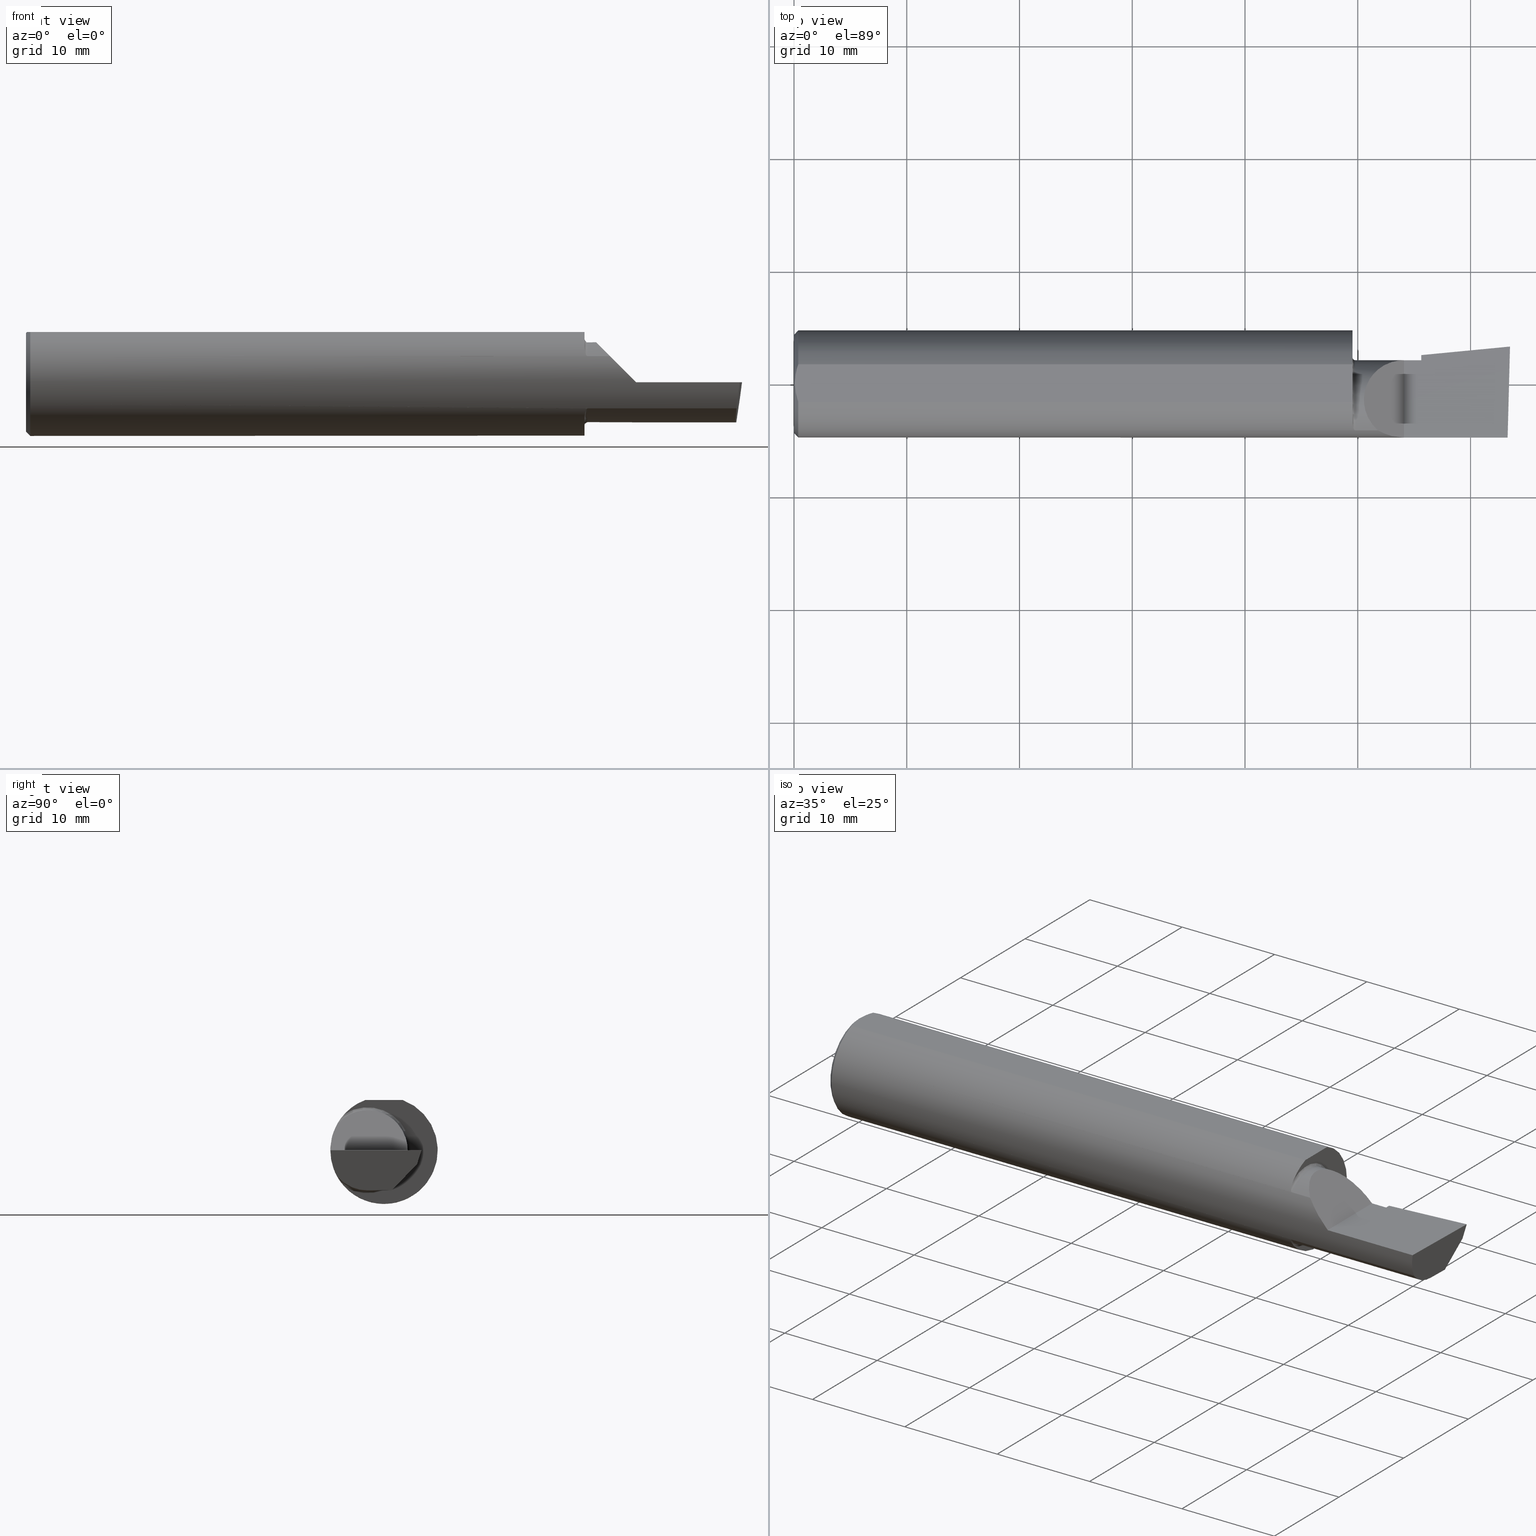
[diagram: canonical four-view strip — front | top / right | iso, engineering-drawing reading convention]
A machine part, canonical four-view strip (front | top / right | iso — engineering-drawing reading convention). The complete STEP part file that produces these views, byte-faithful:
ISO-10303-21;
HEADER;
FILE_DESCRIPTION (( 'STEP AP203' ),
    '1' );
FILE_NAME ('217507-B320500.STEP',
    '2024-04-26T19:29:27',
    ( '' ),
    ( '' ),
    'SwSTEP 2.0',
    'SolidWorks 2022',
    '' );
FILE_SCHEMA (( 'CONFIG_CONTROL_DESIGN' ));
ENDSEC;

DATA;
#1 = CARTESIAN_POINT ( 'NONE',  ( 1.949999999999999956, 0.09265000000000002400, 0.000000000000000000 ) ) ;
#2 = DIRECTION ( 'NONE',  ( -1.000000000000000000, -0.000000000000000000, -0.000000000000000000 ) ) ;
#3 = EDGE_CURVE ( 'NONE', #378, #622, #158, .T. ) ;
#4 = CARTESIAN_POINT ( 'NONE',  ( 1.949999999999999956, -0.1434410963562314512, 0.1207567927018309145 ) ) ;
#5 = FACE_OUTER_BOUND ( 'NONE', #262, .T. ) ;
#6 = AXIS2_PLACEMENT_3D ( 'NONE', #295, #445, #298 ) ;
#7 = DIRECTION ( 'NONE',  ( 0.000000000000000000, 0.000000000000000000, -1.000000000000000000 ) ) ;
#8 = CARTESIAN_POINT ( 'NONE',  ( 0.000000000000000000, -0.06597272163553657975, 0.1753499999999999781 ) ) ;
#9 = DIRECTION ( 'NONE',  ( 1.000000000000000000, 0.000000000000000000, 0.000000000000000000 ) ) ;
#10 = PLANE ( 'NONE',  #56 ) ;
#11 = CIRCLE ( 'NONE', #367, 0.1400500000000000356 ) ;
#12 = LINE ( 'NONE', #218, #620 ) ;
#13 = ADVANCED_FACE ( 'NONE', ( #200 ), #431, .T. ) ;
#14 = LINE ( 'NONE', #219, #458 ) ;
#15 = CC_DESIGN_APPROVAL ( #552, ( #209 ) ) ;
#16 = EDGE_CURVE ( 'NONE', #504, #329, #199, .T. ) ;
#17 = DIRECTION ( 'NONE',  ( 0.000000000000000000, 1.000000000000000000, 0.000000000000000000 ) ) ;
#18 = PLANE ( 'NONE',  #224 ) ;
#19 = ORIENTED_EDGE ( 'NONE', *, *, #569, .T. ) ;
#20 = CALENDAR_DATE ( 2024, 26, 4 ) ;
#21 = CARTESIAN_POINT ( 'NONE',  ( 0.000000000000000000, 0.000000000000000000, 0.000000000000000000 ) ) ;
#22 = DIRECTION ( 'NONE',  ( -0.02617694830779365364, -0.9996573249755593693, -8.535148296544462419E-17 ) ) ;
#23 = ORIENTED_EDGE ( 'NONE', *, *, #588, .T. ) ;
#24 = CARTESIAN_POINT ( 'NONE',  ( 2.493766568580444432, 0.1168246249203733628, -0.04780233936830585728 ) ) ;
#25 = CARTESIAN_POINT ( 'NONE',  ( 1.956503643436637629, -0.1620795007490425099, -0.09397341491037392025 ) ) ;
#26 = EDGE_LOOP ( 'NONE', ( #239, #515, #234 ) ) ;
#27 = DIRECTION ( 'NONE',  ( 0.1053106618240634978, 0.6976485211320199165, 0.7086580314005359593 ) ) ;
#28 = VECTOR ( 'NONE', #196, 39.37007874015748143 ) ;
#29 = CARTESIAN_POINT ( 'NONE',  ( 1.949999999999999956, -0.06597272163553659363, 0.1753499999999999781 ) ) ;
#30 = ORIENTED_EDGE ( 'NONE', *, *, #500, .T. ) ;
#31 = DATE_AND_TIME ( #20, #543 ) ;
#32 = ORIENTED_EDGE ( 'NONE', *, *, #327, .F. ) ;
#33 = VERTEX_POINT ( 'NONE', #296 ) ;
#34 = ADVANCED_FACE ( 'NONE', ( #50 ), #528, .F. ) ;
#35 = PERSON_AND_ORGANIZATION_ROLE ( 'creator' ) ;
#36 = AXIS2_PLACEMENT_3D ( 'NONE', #21, #488, #387 ) ;
#37 = VERTEX_POINT ( 'NONE', #203 ) ;
#38 = EDGE_CURVE ( 'NONE', #329, #142, #341, .T. ) ;
#39 = CARTESIAN_POINT ( 'NONE',  ( 0.004115035183746292881, 0.02255629470626744487, 0.1753499999999999781 ) ) ;
#40 = ORIENTED_EDGE ( 'NONE', *, *, #465, .T. ) ;
#41 = EDGE_CURVE ( 'NONE', #378, #152, #538, .T. ) ;
#42 = CARTESIAN_POINT ( 'NONE',  ( 0.5470260790800310913, -0.05740000000000000657, 2.701812985571357332E-16 ) ) ;
#43 = ORIENTED_EDGE ( 'NONE', *, *, #306, .F. ) ;
#44 = CIRCLE ( 'NONE', #269, 0.1873499999999999888 ) ;
#45 = CARTESIAN_POINT ( 'NONE',  ( 0.000000000000000000, 2.202527268266512578E-17, 0.1723499999999996424 ) ) ;
#46 = VERTEX_POINT ( 'NONE', #343 ) ;
#47 =( BOUNDED_CURVE ( )  B_SPLINE_CURVE ( 3, ( #54, #57, #301, #250 ),
 .UNSPECIFIED., .F., .T. ) 
 B_SPLINE_CURVE_WITH_KNOTS ( ( 4, 4 ),
 ( 5.632580117768155148, 6.493234751459282528 ),
 .UNSPECIFIED. ) 
 CURVE ( )  GEOMETRIC_REPRESENTATION_ITEM ( )  RATIONAL_B_SPLINE_CURVE ( ( 1.000000000000000000, 0.9392195014330944058, 0.9392195014330944058, 1.000000000000000000 ) ) 
 REPRESENTATION_ITEM ( '' )  );
#48 = ADVANCED_FACE ( 'NONE', ( #251 ), #572, .T. ) ;
#49 = DIRECTION ( 'NONE',  ( -1.000000000000000000, 0.000000000000000000, 1.033731667140896077E-16 ) ) ;
#50 = FACE_OUTER_BOUND ( 'NONE', #497, .T. ) ;
#51 = CARTESIAN_POINT ( 'NONE',  ( 2.491672876940991710, -0.1873499999999999888, 6.915950918908297591E-17 ) ) ;
#52 = FACE_OUTER_BOUND ( 'NONE', #122, .T. ) ;
#53 = ORIENTED_EDGE ( 'NONE', *, *, #306, .T. ) ;
#54 = CARTESIAN_POINT ( 'NONE',  ( 2.481080296960508580, -0.1635956445993030084, -0.09130436773856176469 ) ) ;
#55 = CARTESIAN_POINT ( 'NONE',  ( 2.189999999999999947, 0.1008003950587628567, 0.000000000000000000 ) ) ;
#56 = AXIS2_PLACEMENT_3D ( 'NONE', #154, #210, #241 ) ;
#57 = CARTESIAN_POINT ( 'NONE',  ( 2.477925907309857401, -0.1365595166907235813, -0.1227499502647108609 ) ) ;
#58 = DIRECTION ( 'NONE',  ( 6.829619984160658046E-18, -1.000000000000000000, 0.000000000000000000 ) ) ;
#59 = DIRECTION ( 'NONE',  ( 4.755568962650852797E-18, -0.6963153109074924352, -0.7177360153954948085 ) ) ;
#60 = EDGE_CURVE ( 'NONE', #152, #70, #291, .T. ) ;
#61 = CARTESIAN_POINT ( 'NONE',  ( 1.950000000000000178, -0.1434457138613161042, -0.1207517378170856193 ) ) ;
#62 = AXIS2_PLACEMENT_3D ( 'NONE', #470, #425, #49 ) ;
#63 = AXIS2_PLACEMENT_3D ( 'NONE', #349, #436, #110 ) ;
#64 = DIRECTION ( 'NONE',  ( 1.000000000000000000, 6.829619984160658046E-18, 0.000000000000000000 ) ) ;
#65 = CARTESIAN_POINT ( 'NONE',  ( 1.958216394543444761, -0.1632528125625386517, 0.09191892236924094350 ) ) ;
#66 = LOCAL_TIME ( 12, 29, 27.00000000000000000, #233 ) ;
#67 = EDGE_LOOP ( 'NONE', ( #92, #509, #252, #371 ) ) ;
#68 = FACE_OUTER_BOUND ( 'NONE', #317, .T. ) ;
#69 = CARTESIAN_POINT ( 'NONE',  ( 2.477889026591898247, -0.05682100378451882677, -0.1400500000000000633 ) ) ;
#70 = VERTEX_POINT ( 'NONE', #102 ) ;
#71 = CARTESIAN_POINT ( 'NONE',  ( 0.003000000000000218638, 2.334609556160449697E-17, 0.1753499999999999781 ) ) ;
#72 = CARTESIAN_POINT ( 'NONE',  ( 1.958200855161537968, -0.1632467142437131757, -0.09192985110639270707 ) ) ;
#73 = VERTEX_POINT ( 'NONE', #388 ) ;
#74 = CARTESIAN_POINT ( 'NONE',  ( 1.949999999999999956, 0.06597272163553663527, 0.1753499999999999781 ) ) ;
#75 = DIMENSIONAL_EXPONENTS ( 1.000000000000000000, 0.000000000000000000, 0.000000000000000000, 0.000000000000000000, 0.000000000000000000, 0.000000000000000000, 0.000000000000000000 ) ;
#76 = CARTESIAN_POINT ( 'NONE',  ( 1.959999999999999964, -0.1635956445993023423, -0.09130436773856262511 ) ) ;
#77 = CIRCLE ( 'NONE', #36, 0.1723499999999996424 ) ;
#78 = ORIENTED_EDGE ( 'NONE', *, *, #426, .T. ) ;
#79 = VERTEX_POINT ( 'NONE', #300 ) ;
#80 = ORIENTED_EDGE ( 'NONE', *, *, #195, .T. ) ;
#81 = APPROVAL_DATE_TIME ( #510, #552 ) ;
#82 = EDGE_LOOP ( 'NONE', ( #362, #237, #171, #314, #98 ) ) ;
#83 = CC_DESIGN_APPROVAL ( #168, ( #118 ) ) ;
#84 = CARTESIAN_POINT ( 'NONE',  ( 2.129999999999999893, -0.1873499999999999888, 1.065442715258197396E-16 ) ) ;
#85 = ORIENTED_EDGE ( 'NONE', *, *, #600, .T. ) ;
#86 = DIRECTION ( 'NONE',  ( 0.000000000000000000, 1.000000000000000000, 0.000000000000000000 ) ) ;
#87 = B_SPLINE_CURVE_WITH_KNOTS ( 'NONE', 3,
 ( #76, #174, #72, #129, #25, #308, #496, #324, #394, #162, #61, #551 ),
 .UNSPECIFIED., .F., .F.,
 ( 4, 2, 2, 2, 2, 4 ),
 ( 1.968964099585697094E-07, 7.414172666648438453E-05, 0.0001480865569230101957, 0.0002959762174360514638, 0.0005917555384621339459, 0.001183314180514301404 ),
 .UNSPECIFIED. ) ;
#88 = ORIENTED_EDGE ( 'NONE', *, *, #178, .F. ) ;
#89 = CC_DESIGN_PERSON_AND_ORGANIZATION_ASSIGNMENT ( #464, #35, ( #209 ) ) ;
#90 = CARTESIAN_POINT ( 'NONE',  ( 1.959999999999999964, -0.05739999999999999963, 0.000000000000000000 ) ) ;
#91 = VECTOR ( 'NONE', #524, 39.37007874015748143 ) ;
#92 = ORIENTED_EDGE ( 'NONE', *, *, #146, .T. ) ;
#93 = ADVANCED_FACE ( 'NONE', ( #582 ), #299, .T. ) ;
#94 = MANIFOLD_SOLID_BREP ( 'Extrude7', #115 ) ;
#95 = CIRCLE ( 'NONE', #494, 0.1400500000000000356 ) ;
#96 = CARTESIAN_POINT ( 'NONE',  ( 2.477873865042410806, -0.05739999999999999963, -0.1400500000000000633 ) ) ;
#97 = CARTESIAN_POINT ( 'NONE',  ( 2.493439983562941720, 0.1146611065212078395, -0.04999999999999999584 ) ) ;
#98 = ORIENTED_EDGE ( 'NONE', *, *, #544, .F. ) ;
#99 = CARTESIAN_POINT ( 'NONE',  ( 2.491672876940991710, -0.1873499999999999888, 6.915950918908297591E-17 ) ) ;
#100 = CARTESIAN_POINT ( 'NONE',  ( 2.189999999999999947, -0.05739999999999999963, -0.1400500000000000633 ) ) ;
#101 = CARTESIAN_POINT ( 'NONE',  ( 2.189999999999999947, 0.06026672169836861520, -0.07595093880103576112 ) ) ;
#102 = CARTESIAN_POINT ( 'NONE',  ( 0.01499999999999999424, 0.000000000000000000, -0.1873499999999999888 ) ) ;
#103 = ADVANCED_FACE ( 'NONE', ( #52 ), #10, .F. ) ;
#104 = PERSON_AND_ORGANIZATION ( #278, #338 ) ;
#105 = LINE ( 'NONE', #208, #575 ) ;
#106 = EDGE_CURVE ( 'NONE', #493, #460, #346, .T. ) ;
#107 = DIRECTION ( 'NONE',  ( -0.9953961983671800740, -0.09584575252021028391, -1.093478026937437971E-17 ) ) ;
#108 = VECTOR ( 'NONE', #107, 39.37007874015748854 ) ;
#109 = DIRECTION ( 'NONE',  ( -0.7071067811865439090, 0.000000000000000000, -0.7071067811865512365 ) ) ;
#110 = DIRECTION ( 'NONE',  ( 0.000000000000000000, -1.000000000000000000, 0.000000000000000000 ) ) ;
#111 = CARTESIAN_POINT ( 'NONE',  ( 2.189999999999999947, 0.06670933817657881404, -0.06931012851386068874 ) ) ;
#112 = CARTESIAN_POINT ( 'NONE',  ( 1.959999999999999964, -0.1635956445993023423, -0.09130436773856262511 ) ) ;
#113 = EDGE_CURVE ( 'NONE', #37, #142, #530, .T. ) ;
#114 = ORIENTED_EDGE ( 'NONE', *, *, #330, .T. ) ;
#115 = CLOSED_SHELL ( 'NONE', ( #48, #276, #525, #303, #521, #161, #351, #446, #437, #93, #197, #13, #267, #173, #215, #34, #103 ) ) ;
#116 = CARTESIAN_POINT ( 'NONE',  ( 1.949999999999999956, 0.2373500000000000332, 0.1753499999999999504 ) ) ;
#117 = DIRECTION ( 'NONE',  ( -0.06894566448119619773, 0.7160281025913034503, -0.6946583704589934793 ) ) ;
#118 = PRODUCT_DEFINITION_FORMATION_WITH_SPECIFIED_SOURCE ( 'ANY', '', #579, .NOT_KNOWN. ) ;
#119 = ORIENTED_EDGE ( 'NONE', *, *, #60, .T. ) ;
#120 = DATE_AND_TIME ( #359, #66 ) ;
#121 = CARTESIAN_POINT ( 'NONE',  ( 1.957002686248069612, -0.1625222757049321343, 0.09320450095779687916 ) ) ;
#122 = EDGE_LOOP ( 'NONE', ( #334, #272, #373, #19, #542, #455 ) ) ;
#123 = PRODUCT_RELATED_PRODUCT_CATEGORY ( 'detail', '', ( #579 ) ) ;
#124 = APPLICATION_PROTOCOL_DEFINITION ( 'international standard', 'config_control_design', 1994, #205 ) ;
#125 = DIRECTION ( 'NONE',  ( 1.000000000000000000, 6.829619984160658046E-18, 0.000000000000000000 ) ) ;
#126 = ORIENTED_EDGE ( 'NONE', *, *, #490, .F. ) ;
#127 = LINE ( 'NONE', #24, #182 ) ;
#128 = AXIS2_PLACEMENT_3D ( 'NONE', #587, #9, #247 ) ;
#129 = CARTESIAN_POINT ( 'NONE',  ( 1.956977885846546306, -0.1625039841807080776, -0.09323648621225624766 ) ) ;
#130 = CIRCLE ( 'NONE', #370, 0.1873499999999999888 ) ;
#131 = EDGE_LOOP ( 'NONE', ( #275, #85, #562, #512 ) ) ;
#132 = DIRECTION ( 'NONE',  ( 0.000000000000000000, 0.000000000000000000, 1.000000000000000000 ) ) ;
#133 = EDGE_CURVE ( 'NONE', #79, #493, #145, .T. ) ;
#134 = ORIENTED_EDGE ( 'NONE', *, *, #390, .T. ) ;
#135 = APPROVAL_ROLE ( '' ) ;
#136 =( NAMED_UNIT ( * ) PLANE_ANGLE_UNIT ( ) SI_UNIT ( $, .RADIAN. ) );
#137 = ORIENTED_EDGE ( 'NONE', *, *, #483, .F. ) ;
#138 = DIRECTION ( 'NONE',  ( 0.02617694830779364323, 0.9996573249755593693, -2.665804247635780349E-18 ) ) ;
#139 = AXIS2_PLACEMENT_3D ( 'NONE', #571, #293, #480 ) ;
#140 = VERTEX_POINT ( 'NONE', #97 ) ;
#141 = CARTESIAN_POINT ( 'NONE',  ( 2.490039159128059953, -0.2497391662021650194, 6.932588350567417155E-17 ) ) ;
#142 = VERTEX_POINT ( 'NONE', #476 ) ;
#143 = DIRECTION ( 'NONE',  ( 1.000000000000000000, 0.000000000000000000, 0.000000000000000000 ) ) ;
#144 = VECTOR ( 'NONE', #484, 39.37007874015748143 ) ;
#145 = LINE ( 'NONE', #337, #192 ) ;
#146 = EDGE_CURVE ( 'NONE', #220, #507, #567, .T. ) ;
#147 = DATE_AND_TIME ( #573, #360 ) ;
#148 = AXIS2_PLACEMENT_3D ( 'NONE', #304, #583, #435 ) ;
#149 = PLANE ( 'NONE',  #606 ) ;
#150 = CARTESIAN_POINT ( 'NONE',  ( 1.953030094855348286, -0.1569359418858940758, 0.1023945457153810634 ) ) ;
#151 = LINE ( 'NONE', #238, #553 ) ;
#152 = VERTEX_POINT ( 'NONE', #357 ) ;
#153 = PLANE ( 'NONE',  #128 ) ;
#154 = CARTESIAN_POINT ( 'NONE',  ( 2.475850273311264615, -0.1244607267090816621, -0.1422282308645907711 ) ) ;
#155 = PERSON_AND_ORGANIZATION ( #278, #338 ) ;
#156 = DIRECTION ( 'NONE',  ( -1.000000000000000000, -6.829619984160658046E-18, -0.000000000000000000 ) ) ;
#157 = VECTOR ( 'NONE', #366, 39.37007874015748854 ) ;
#158 = LINE ( 'NONE', #381, #462 ) ;
#159 = VECTOR ( 'NONE', #22, 39.37007874015748143 ) ;
#160 = PLANE ( 'NONE',  #356 ) ;
#161 = ADVANCED_FACE ( 'NONE', ( #316 ), #499, .F. ) ;
#162 = CARTESIAN_POINT ( 'NONE',  ( 1.950535130224571922, -0.1482744458446704217, -0.1147666934430604108 ) ) ;
#163 = ORIENTED_EDGE ( 'NONE', *, *, #3, .F. ) ;
#164 = FACE_OUTER_BOUND ( 'NONE', #473, .T. ) ;
#165 = DIRECTION ( 'NONE',  ( 6.829619984160658046E-18, -1.000000000000000000, 0.000000000000000000 ) ) ;
#166 = ORIENTED_EDGE ( 'NONE', *, *, #619, .F. ) ;
#167 = DIRECTION ( 'NONE',  ( 1.000000000000000000, 0.000000000000000000, 0.000000000000000000 ) ) ;
#168 = APPROVAL ( #190, 'UNSPECIFIED' ) ;
#169 = FACE_OUTER_BOUND ( 'NONE', #516, .T. ) ;
#170 = APPROVAL_PERSON_ORGANIZATION ( #184, #428, #135 ) ;
#171 = ORIENTED_EDGE ( 'NONE', *, *, #390, .F. ) ;
#172 = MECHANICAL_CONTEXT ( 'NONE', #618, 'mechanical' ) ;
#173 = ADVANCED_FACE ( 'NONE', ( #454 ), #443, .T. ) ;
#174 = CARTESIAN_POINT ( 'NONE',  ( 1.959014641741960938, -0.1635956445993026198, -0.09130436773856262511 ) ) ;
#175 = VERTEX_POINT ( 'NONE', #265 ) ;
#176 = DIRECTION ( 'NONE',  ( -1.000000000000000000, 5.691349986800549142E-18, -0.000000000000000000 ) ) ;
#177 = EDGE_CURVE ( 'NONE', #73, #448, #14, .T. ) ;
#178 = EDGE_CURVE ( 'NONE', #193, #287, #87, .T. ) ;
#179 = CARTESIAN_POINT ( 'NONE',  ( 0.000000000000000000, -0.05740000000000001351, 0.000000000000000000 ) ) ;
#180 = VERTEX_POINT ( 'NONE', #450 ) ;
#181 = VECTOR ( 'NONE', #616, 39.37007874015748143 ) ;
#182 = VECTOR ( 'NONE', #27, 39.37007874015748854 ) ;
#183 = ORIENTED_EDGE ( 'NONE', *, *, #539, .F. ) ;
#184 = PERSON_AND_ORGANIZATION ( #278, #338 ) ;
#185 = COORDINATED_UNIVERSAL_TIME_OFFSET ( 8, 0, .BEHIND. ) ;
#186 = ORIENTED_EDGE ( 'NONE', *, *, #177, .F. ) ;
#187 = ORIENTED_EDGE ( 'NONE', *, *, #325, .T. ) ;
#188 = DIRECTION ( 'NONE',  ( 6.829619984160658046E-18, -1.000000000000000000, 0.000000000000000000 ) ) ;
#189 = EDGE_LOOP ( 'NONE', ( #518, #114, #217, #331, #557, #43 ) ) ;
#190 = APPROVAL_STATUS ( 'not_yet_approved' ) ;
#191 = DIRECTION ( 'NONE',  ( -1.000000000000000000, -6.829619984160658046E-18, 0.000000000000000000 ) ) ;
#192 = VECTOR ( 'NONE', #522, 39.37007874015748143 ) ;
#193 = VERTEX_POINT ( 'NONE', #112 ) ;
#194 = CARTESIAN_POINT ( 'NONE',  ( 2.189999999999999947, -0.05739999999999999963, -0.1400500000000000633 ) ) ;
#195 = EDGE_CURVE ( 'NONE', #507, #422, #548, .T. ) ;
#196 = DIRECTION ( 'NONE',  ( -6.829619984160658816E-18, 1.000000000000000000, 7.059994452165177242E-34 ) ) ;
#197 = ADVANCED_FACE ( 'NONE', ( #593 ), #532, .F. ) ;
#198 = CARTESIAN_POINT ( 'NONE',  ( 0.003000000000000218638, 2.334609556160449697E-17, 0.1753499999999999781 ) ) ;
#199 = CIRCLE ( 'NONE', #63, 0.1400500000000000356 ) ;
#200 = FACE_OUTER_BOUND ( 'NONE', #407, .T. ) ;
#201 = SECURITY_CLASSIFICATION ( '', '', #395 ) ;
#202 = CARTESIAN_POINT ( 'NONE',  ( 2.066758987970638284, -0.1792580844883770730, 0.06324101202936138755 ) ) ;
#203 = CARTESIAN_POINT ( 'NONE',  ( 2.480058035321255794, 0.02601009779168069955, -0.1400500000000000633 ) ) ;
#204 = EDGE_CURVE ( 'NONE', #220, #287, #404, .T. ) ;
#205 = APPLICATION_CONTEXT ( 'configuration controlled 3d designs of mechanical parts and assemblies' ) ;
#206 = LINE ( 'NONE', #254, #281 ) ;
#207 = DIRECTION ( 'NONE',  ( -1.000000000000000000, -0.000000000000000000, -0.000000000000000000 ) ) ;
#208 = CARTESIAN_POINT ( 'NONE',  ( 2.075000000000000178, -0.1635956445993030084, -0.09130436773856176469 ) ) ;
#209 = PRODUCT_DEFINITION ( 'UNKNOWN', '', #118, #513 ) ;
#210 = DIRECTION ( 'NONE',  ( -0.9922060308645608284, 0.02598182930461468559, 0.1218693434050591162 ) ) ;
#211 = DIRECTION ( 'NONE',  ( 0.1240019227988267692, 0.3022330132596589558, 0.9451342385281472636 ) ) ;
#212 = VECTOR ( 'NONE', #59, 39.37007874015748854 ) ;
#213 = DIRECTION ( 'NONE',  ( 4.755568962650852797E-18, -0.6963153109074924352, -0.7177360153954948085 ) ) ;
#214 = CARTESIAN_POINT ( 'NONE',  ( 0.01499999999999999424, 0.000000000000000000, 0.000000000000000000 ) ) ;
#215 = ADVANCED_FACE ( 'NONE', ( #457 ), #18, .T. ) ;
#216 = CARTESIAN_POINT ( 'NONE',  ( 2.189999999999999947, -0.05739999999999999963, 0.000000000000000000 ) ) ;
#217 = ORIENTED_EDGE ( 'NONE', *, *, #411, .F. ) ;
#218 = CARTESIAN_POINT ( 'NONE',  ( 2.500188977433779769, 0.1311105994646662165, 0.001440373173041438384 ) ) ;
#219 = CARTESIAN_POINT ( 'NONE',  ( 2.189999999999999947, 0.06670933817657881404, -0.06931012851386068874 ) ) ;
#220 = VERTEX_POINT ( 'NONE', #604 ) ;
#221 = CARTESIAN_POINT ( 'NONE',  ( 0.01499999999999997863, -0.06597272163553657975, 0.1753499999999999781 ) ) ;
#222 = DIRECTION ( 'NONE',  ( 0.000000000000000000, -1.000000000000000000, 0.000000000000000000 ) ) ;
#223 = ORIENTED_EDGE ( 'NONE', *, *, #607, .T. ) ;
#224 = AXIS2_PLACEMENT_3D ( 'NONE', #589, #117, #364 ) ;
#225 = CARTESIAN_POINT ( 'NONE',  ( 2.189999999999999947, 0.06670933817657881404, -0.06931012851386068874 ) ) ;
#226 = DIRECTION ( 'NONE',  ( 0.000000000000000000, 0.2936076258024060137, 0.9559260233253795702 ) ) ;
#227 = VERTEX_POINT ( 'NONE', #29 ) ;
#228 =( NAMED_UNIT ( * ) SI_UNIT ( $, .STERADIAN. ) SOLID_ANGLE_UNIT ( ) );
#229 = ORIENTED_EDGE ( 'NONE', *, *, #230, .F. ) ;
#230 = EDGE_CURVE ( 'NONE', #504, #448, #566, .T. ) ;
#231 = CIRCLE ( 'NONE', #466, 0.1873499999999999888 ) ;
#232 = ORIENTED_EDGE ( 'NONE', *, *, #417, .T. ) ;
#233 = COORDINATED_UNIVERSAL_TIME_OFFSET ( 8, 0, .BEHIND. ) ;
#234 = ORIENTED_EDGE ( 'NONE', *, *, #38, .F. ) ;
#235 = CARTESIAN_POINT ( 'NONE',  ( 0.008244775919947424855, 0.04453482769755855164, 0.1753499999999999504 ) ) ;
#236 = CC_DESIGN_DATE_AND_TIME_ASSIGNMENT ( #31, #610, ( #201 ) ) ;
#237 = ORIENTED_EDGE ( 'NONE', *, *, #426, .F. ) ;
#238 = CARTESIAN_POINT ( 'NONE',  ( 0.000000000000000000, 0.06597272163553663527, 0.1753499999999999781 ) ) ;
#239 = ORIENTED_EDGE ( 'NONE', *, *, #16, .F. ) ;
#240 = CARTESIAN_POINT ( 'NONE',  ( 0.01499999999999999424, 0.06597272163553663527, 0.1753499999999999781 ) ) ;
#241 = DIRECTION ( 'NONE',  ( 0.1219104985251942275, 0.000000000000000000, 0.9925410975618785825 ) ) ;
#242 = CARTESIAN_POINT ( 'NONE',  ( 2.129999999999999893, -0.2500000000000000555, 1.065442715258197396E-16 ) ) ;
#243 = DIRECTION ( 'NONE',  ( 0.7071067811865390240, 0.000000000000000000, -0.7071067811865560104 ) ) ;
#244 = CARTESIAN_POINT ( 'NONE',  ( 1.921229036482944075, -0.06260079402492431389, 0.2087709635170538203 ) ) ;
#245 = DIRECTION ( 'NONE',  ( 0.7071067811865390240, 8.659560562355036396E-17, 0.7071067811865560104 ) ) ;
#246 = LOCAL_TIME ( 12, 29, 27.00000000000000000, #258 ) ;
#247 = DIRECTION ( 'NONE',  ( 0.000000000000000000, 0.000000000000000000, -1.000000000000000000 ) ) ;
#248 = AXIS2_PLACEMENT_3D ( 'NONE', #260, #255, #319 ) ;
#249 = CARTESIAN_POINT ( 'NONE',  ( 0.000000000000000000, 0.000000000000000000, 0.000000000000000000 ) ) ;
#250 = CARTESIAN_POINT ( 'NONE',  ( 2.477873865042410806, -0.05739999999999999963, -0.1400500000000000633 ) ) ;
#251 = FACE_OUTER_BOUND ( 'NONE', #605, .T. ) ;
#252 = ORIENTED_EDGE ( 'NONE', *, *, #178, .T. ) ;
#253 = PERSON_AND_ORGANIZATION_ROLE ( 'classification_officer' ) ;
#254 = CARTESIAN_POINT ( 'NONE',  ( 2.511419111345318811, 0.1163922996227946677, -0.04999999999999999584 ) ) ;
#255 = DIRECTION ( 'NONE',  ( 0.000000000000000000, -1.438723400918613551E-16, -1.000000000000000000 ) ) ;
#256 =( GEOMETRIC_REPRESENTATION_CONTEXT ( 3 ) GLOBAL_UNCERTAINTY_ASSIGNED_CONTEXT ( ( #613 ) ) GLOBAL_UNIT_ASSIGNED_CONTEXT ( ( #264, #136, #228 ) ) REPRESENTATION_CONTEXT ( 'NONE', 'WORKASPACE' ) );
#257 = ORIENTED_EDGE ( 'NONE', *, *, #60, .F. ) ;
#258 = COORDINATED_UNIVERSAL_TIME_OFFSET ( 8, 0, .BEHIND. ) ;
#259 = LINE ( 'NONE', #116, #586 ) ;
#260 = CARTESIAN_POINT ( 'NONE',  ( 2.500000000000000000, 0.2373500000000000332, 0.1753499999999999504 ) ) ;
#261 =( BOUNDED_CURVE ( )  B_SPLINE_CURVE ( 3, ( #84, #340, #202, #420 ),
 .UNSPECIFIED., .F., .T. ) 
 B_SPLINE_CURVE_WITH_KNOTS ( ( 4, 4 ),
 ( 4.712388980384689674, 5.221437360734125122 ),
 .UNSPECIFIED. ) 
 CURVE ( )  GEOMETRIC_REPRESENTATION_ITEM ( )  RATIONAL_B_SPLINE_CURVE ( ( 1.000000000000000000, 0.9785221379938656705, 0.9785221379938656705, 1.000000000000000000 ) ) 
 REPRESENTATION_ITEM ( '' )  );
#262 = EDGE_LOOP ( 'NONE', ( #469, #282, #223, #374 ) ) ;
#263 = DATE_AND_TIME ( #399, #246 ) ;
#264 =( CONVERSION_BASED_UNIT ( 'INCH', #372 ) LENGTH_UNIT ( ) NAMED_UNIT ( #75 ) );
#265 = CARTESIAN_POINT ( 'NONE',  ( 2.481080296960508580, -0.1635956445993030084, -0.09130436773856176469 ) ) ;
#266 = EDGE_CURVE ( 'NONE', #37, #289, #313, .T. ) ;
#267 = ADVANCED_FACE ( 'NONE', ( #169 ), #545, .T. ) ;
#268 = ORIENTED_EDGE ( 'NONE', *, *, #556, .T. ) ;
#269 = AXIS2_PLACEMENT_3D ( 'NONE', #578, #379, #86 ) ;
#270 = CARTESIAN_POINT ( 'NONE',  ( 0.003000000000000172667, -0.01126410975715121283, 0.1753500000000000059 ) ) ;
#271 = CARTESIAN_POINT ( 'NONE',  ( 1.956530533518344717, -0.1621041320318378220, 0.09393089788995234724 ) ) ;
#272 = ORIENTED_EDGE ( 'NONE', *, *, #266, .F. ) ;
#273 = AXIS2_PLACEMENT_3D ( 'NONE', #447, #503, #165 ) ;
#274 = CARTESIAN_POINT ( 'NONE',  ( 2.189999999999999947, 0.09745742888373043478, -0.01088401009027229437 ) ) ;
#275 = ORIENTED_EDGE ( 'NONE', *, *, #106, .T. ) ;
#276 = ADVANCED_FACE ( 'NONE', ( #574 ), #149, .T. ) ;
#277 = APPROVAL_STATUS ( 'not_yet_approved' ) ;
#278 = PERSON ( 'UNSPECIFIED', 'UNSPECIFIED', 'UNSPECIFIED', ('UNSPECIFIED'), ('UNSPECIFIED'), ('UNSPECIFIED') ) ;
#279 = ORIENTED_EDGE ( 'NONE', *, *, #434, .T. ) ;
#280 = AXIS2_PLACEMENT_3D ( 'NONE', #249, #207, #580 ) ;
#281 = VECTOR ( 'NONE', #441, 39.37007874015748854 ) ;
#282 = ORIENTED_EDGE ( 'NONE', *, *, #266, .T. ) ;
#283 = CARTESIAN_POINT ( 'NONE',  ( 2.487725449370724817, -0.1873500000000000443, -0.03213820089768506388 ) ) ;
#284 = ORIENTED_EDGE ( 'NONE', *, *, #285, .T. ) ;
#285 = EDGE_CURVE ( 'NONE', #46, #422, #261, .T. ) ;
#286 = CARTESIAN_POINT ( 'NONE',  ( 2.038695632261437130, -0.1635956445993029529, 0.09130436773856191734 ) ) ;
#287 = VERTEX_POINT ( 'NONE', #332 ) ;
#288 = DIRECTION ( 'NONE',  ( -1.000000000000000000, -6.829619984160658046E-18, -0.000000000000000000 ) ) ;
#289 = VERTEX_POINT ( 'NONE', #96 ) ;
#290 = DIRECTION ( 'NONE',  ( 0.000000000000000000, -1.000000000000000000, -8.537024980200821325E-17 ) ) ;
#291 = LINE ( 'NONE', #489, #307 ) ;
#292 = CARTESIAN_POINT ( 'NONE',  ( 2.484117089522337452, -0.1792580844883771007, -0.06324101202936138755 ) ) ;
#293 = DIRECTION ( 'NONE',  ( 1.000000000000000000, 0.000000000000000000, 0.000000000000000000 ) ) ;
#294 = PERSON_AND_ORGANIZATION ( #278, #338 ) ;
#295 = CARTESIAN_POINT ( 'NONE',  ( 0.000000000000000000, 0.000000000000000000, 0.000000000000000000 ) ) ;
#296 = CARTESIAN_POINT ( 'NONE',  ( 2.499999999999978684, 0.1306500000000237194, 8.388614136560643774E-14 ) ) ;
#297 = PERSON_AND_ORGANIZATION_ROLE ( 'design_supplier' ) ;
#298 = DIRECTION ( 'NONE',  ( 0.000000000000000000, 0.000000000000000000, 1.000000000000000000 ) ) ;
#299 = CONICAL_SURFACE ( 'NONE', #139, 0.1873499999999999888, 0.7853981633974602694 ) ;
#300 = CARTESIAN_POINT ( 'NONE',  ( 2.129999999999999893, 0.08264999999999990410, 1.065442715258197396E-16 ) ) ;
#301 = CARTESIAN_POINT ( 'NONE',  ( 2.476787929832031221, -0.09887019258091186980, -0.1400500000000000356 ) ) ;
#302 = DIRECTION ( 'NONE',  ( 1.000000000000000000, 0.000000000000000000, 0.000000000000000000 ) ) ;
#303 = ADVANCED_FACE ( 'NONE', ( #5 ), #624, .F. ) ;
#304 = CARTESIAN_POINT ( 'NONE',  ( 2.189999999999999947, 0.1008003950587628567, 0.000000000000000000 ) ) ;
#305 = B_SPLINE_CURVE_WITH_KNOTS ( 'NONE', 3,
 ( #221, #412, #415, #505, #270, #71 ),
 .UNSPECIFIED., .F., .F.,
 ( 4, 2, 4 ),
 ( 0.001779942938356815062, 0.002629978419973711019, 0.003480013901590607410 ),
 .UNSPECIFIED. ) ;
#306 = EDGE_CURVE ( 'NONE', #46, #79, #479, .T. ) ;
#307 = VECTOR ( 'NONE', #243, 39.37007874015748143 ) ;
#308 = CARTESIAN_POINT ( 'NONE',  ( 1.955249642630817686, -0.1607705839484627197, -0.09620717711675648431 ) ) ;
#309 =( BOUNDED_CURVE ( )  B_SPLINE_CURVE ( 3, ( #517, #244, #472, #430 ),
 .UNSPECIFIED., .F., .T. ) 
 B_SPLINE_CURVE_WITH_KNOTS ( ( 4, 4 ),
 ( 5.422530673488458852, 7.853981633974482790 ),
 .UNSPECIFIED. ) 
 CURVE ( )  GEOMETRIC_REPRESENTATION_ITEM ( )  RATIONAL_B_SPLINE_CURVE ( ( 1.000000000000000000, 0.5651045289226863666, 0.5651045289226863666, 1.000000000000000000 ) ) 
 REPRESENTATION_ITEM ( '' )  );
#310 = VERTEX_POINT ( 'NONE', #99 ) ;
#311 = CARTESIAN_POINT ( 'NONE',  ( 2.189999999999999947, 0.02208021110064887355, -0.1153121786430050255 ) ) ;
#312 = VECTOR ( 'NONE', #323, 39.37007874015748854 ) ;
#313 = LINE ( 'NONE', #69, #159 ) ;
#314 = ORIENTED_EDGE ( 'NONE', *, *, #615, .F. ) ;
#315 = DATE_TIME_ROLE ( 'creation_date' ) ;
#316 = FACE_OUTER_BOUND ( 'NONE', #82, .T. ) ;
#317 = EDGE_LOOP ( 'NONE', ( #32, #559, #53 ) ) ;
#318 = APPROVAL_ROLE ( '' ) ;
#319 = DIRECTION ( 'NONE',  ( 0.000000000000000000, 1.000000000000000000, -1.438723400918613551E-16 ) ) ;
#320 = ORIENTED_EDGE ( 'NONE', *, *, #133, .T. ) ;
#321 = B_SPLINE_CURVE_WITH_KNOTS ( 'NONE', 3,
 ( #198, #506, #39, #235, #475, #240 ),
 .UNSPECIFIED., .F., .F.,
 ( 4, 2, 4 ),
 ( 0.003480013901590607410, 0.004330767971208083697, 0.005181522040825559984 ),
 .UNSPECIFIED. ) ;
#322 = AXIS2_PLACEMENT_3D ( 'NONE', #336, #2, #520 ) ;
#323 = DIRECTION ( 'NONE',  ( 2.005228508682076280E-18, -0.2936076258024060137, -0.9559260233253795702 ) ) ;
#324 = CARTESIAN_POINT ( 'NONE',  ( 1.953013987655237482, -0.1568958379530025760, -0.1024560150687161136 ) ) ;
#325 = EDGE_CURVE ( 'NONE', #175, #310, #608, .T. ) ;
#326 = ORIENTED_EDGE ( 'NONE', *, *, #230, .T. ) ;
#327 = EDGE_CURVE ( 'NONE', #422, #79, #309, .T. ) ;
#328 = CALENDAR_DATE ( 2024, 26, 4 ) ;
#329 = VERTEX_POINT ( 'NONE', #194 ) ;
#330 = EDGE_CURVE ( 'NONE', #310, #33, #468, .T. ) ;
#331 = ORIENTED_EDGE ( 'NONE', *, *, #106, .F. ) ;
#332 = CARTESIAN_POINT ( 'NONE',  ( 1.949999999999999956, -0.1383256097560974507, -0.1263568288047932642 ) ) ;
#333 = ORIENTED_EDGE ( 'NONE', *, *, #465, .F. ) ;
#334 = ORIENTED_EDGE ( 'NONE', *, *, #539, .T. ) ;
#335 = VECTOR ( 'NONE', #138, 39.37007874015748854 ) ;
#336 = CARTESIAN_POINT ( 'NONE',  ( 0.01499999999999999424, 0.000000000000000000, 0.000000000000000000 ) ) ;
#337 = CARTESIAN_POINT ( 'NONE',  ( -9.564882787816664242E-19, 0.08264999999999998737, 3.267291166268304703E-16 ) ) ;
#338 = ORGANIZATION ( 'UNSPECIFIED', 'UNSPECIFIED', '' ) ;
#339 = APPROVAL_DATE_TIME ( #147, #168 ) ;
#340 = CARTESIAN_POINT ( 'NONE',  ( 2.097861799102314961, -0.1873500000000000165, 0.03213820089768509858 ) ) ;
#341 = LINE ( 'NONE', #100, #144 ) ;
#342 = DIRECTION ( 'NONE',  ( -1.000000000000000000, -0.000000000000000000, -0.000000000000000000 ) ) ;
#343 = CARTESIAN_POINT ( 'NONE',  ( 2.129999999999999893, -0.1873499999999999888, 1.065442715258197396E-16 ) ) ;
#344 = CC_DESIGN_DATE_AND_TIME_ASSIGNMENT ( #120, #315, ( #209 ) ) ;
#345 = CARTESIAN_POINT ( 'NONE',  ( 0.01499999999999997863, -0.06597272163553657975, 0.1753499999999999781 ) ) ;
#346 = LINE ( 'NONE', #427, #28 ) ;
#347 = LINE ( 'NONE', #531, #392 ) ;
#348 = AXIS2_PLACEMENT_3D ( 'NONE', #216, #401, #597 ) ;
#349 = CARTESIAN_POINT ( 'NONE',  ( 2.189999999999999947, -0.05739999999999999963, 0.000000000000000000 ) ) ;
#350 = DIRECTION ( 'NONE',  ( 0.000000000000000000, -1.000000000000000000, 0.000000000000000000 ) ) ;
#351 = ADVANCED_FACE ( 'NONE', ( #570 ), #385, .F. ) ;
#352 = CARTESIAN_POINT ( 'NONE',  ( 1.959029114488071599, -0.1635956446012892529, 0.09130436773500420766 ) ) ;
#353 = ORIENTED_EDGE ( 'NONE', *, *, #490, .T. ) ;
#354 = COORDINATED_UNIVERSAL_TIME_OFFSET ( 8, 0, .BEHIND. ) ;
#355 = DIRECTION ( 'NONE',  ( -1.000000000000000000, -0.000000000000000000, -0.000000000000000000 ) ) ;
#356 = AXIS2_PLACEMENT_3D ( 'NONE', #591, #109, #537 ) ;
#357 = CARTESIAN_POINT ( 'NONE',  ( 0.000000000000000000, 0.000000000000000000, -0.1723499999999996424 ) ) ;
#358 = ORIENTED_EDGE ( 'NONE', *, *, #592, .F. ) ;
#359 = CALENDAR_DATE ( 2024, 26, 4 ) ;
#360 = LOCAL_TIME ( 12, 29, 27.00000000000000000, #474 ) ;
#361 = DIRECTION ( 'NONE',  ( -0.09165774897393341725, 0.9519021185660614393, -0.2923717047227303301 ) ) ;
#362 = ORIENTED_EDGE ( 'NONE', *, *, #500, .F. ) ;
#363 = CARTESIAN_POINT ( 'NONE',  ( 0.000000000000000000, 0.000000000000000000, 0.000000000000000000 ) ) ;
#364 = DIRECTION ( 'NONE',  ( 0.000000000000000000, 0.6963153109074925462, 0.7177360153954946975 ) ) ;
#365 = ORIENTED_EDGE ( 'NONE', *, *, #417, .F. ) ;
#366 = DIRECTION ( 'NONE',  ( 4.755568962650852797E-18, -0.6963153109074924352, -0.7177360153954948085 ) ) ;
#367 = AXIS2_PLACEMENT_3D ( 'NONE', #90, #288, #375 ) ;
#368 = DIRECTION ( 'NONE',  ( -1.000000000000000000, -6.829619984160658046E-18, -0.000000000000000000 ) ) ;
#369 = ORIENTED_EDGE ( 'NONE', *, *, #600, .F. ) ;
#370 = AXIS2_PLACEMENT_3D ( 'NONE', #214, #342, #396 ) ;
#371 = ORIENTED_EDGE ( 'NONE', *, *, #204, .F. ) ;
#372 = LENGTH_MEASURE_WITH_UNIT ( LENGTH_MEASURE( 0.02539999999999999897 ), #550 );
#373 = ORIENTED_EDGE ( 'NONE', *, *, #592, .T. ) ;
#374 = ORIENTED_EDGE ( 'NONE', *, *, #38, .T. ) ;
#375 = DIRECTION ( 'NONE',  ( 0.000000000000000000, -1.000000000000000000, 0.000000000000000000 ) ) ;
#376 = ORIENTED_EDGE ( 'NONE', *, *, #569, .F. ) ;
#377 = CARTESIAN_POINT ( 'NONE',  ( 2.500000000000000000, -0.05739999999999999963, -0.1400500000000000633 ) ) ;
#378 = VERTEX_POINT ( 'NONE', #45 ) ;
#379 = DIRECTION ( 'NONE',  ( 1.000000000000000000, 6.829619984160658046E-18, 0.000000000000000000 ) ) ;
#380 = EDGE_CURVE ( 'NONE', #507, #193, #11, .T. ) ;
#381 = CARTESIAN_POINT ( 'NONE',  ( 0.01499999999999999424, 2.294375778202566330E-17, 0.1873499999999999888 ) ) ;
#382 = DIRECTION ( 'NONE',  ( 6.829619984160658816E-18, -1.000000000000000000, 0.000000000000000000 ) ) ;
#383 = CARTESIAN_POINT ( 'NONE',  ( 1.950530357231195167, -0.1482623167742066761, 0.1147852156680475577 ) ) ;
#384 = VECTOR ( 'NONE', #176, 39.37007874015748143 ) ;
#385 = PLANE ( 'NONE',  #62 ) ;
#386 = ORIENTED_EDGE ( 'NONE', *, *, #146, .F. ) ;
#387 = DIRECTION ( 'NONE',  ( 0.000000000000000000, 0.000000000000000000, 1.000000000000000000 ) ) ;
#388 = CARTESIAN_POINT ( 'NONE',  ( 2.189999999999999947, 0.08544315931885967941, -0.04999999999999999584 ) ) ;
#389 = DIRECTION ( 'NONE',  ( 6.829619984160658046E-18, -1.000000000000000000, 1.438723400918613551E-16 ) ) ;
#390 = EDGE_CURVE ( 'NONE', #622, #180, #321, .T. ) ;
#391 = CARTESIAN_POINT ( 'NONE',  ( 2.491859106488688358, 0.02714641170210404381, -0.1400500000000000633 ) ) ;
#392 = VECTOR ( 'NONE', #355, 39.37007874015748143 ) ;
#393 = CARTESIAN_POINT ( 'NONE',  ( 1.949999999999999956, 0.000000000000000000, 0.000000000000000000 ) ) ;
#394 = CARTESIAN_POINT ( 'NONE',  ( 1.952284340146847486, -0.1548226717605713232, -0.1055657780131315504 ) ) ;
#395 = SECURITY_CLASSIFICATION_LEVEL ( 'unclassified' ) ;
#396 = DIRECTION ( 'NONE',  ( 0.000000000000000000, 0.000000000000000000, 1.000000000000000000 ) ) ;
#397 = CARTESIAN_POINT ( 'NONE',  ( 2.509953961983673043, 0.1316084575252021716, -6.829619984160658046E-17 ) ) ;
#398 = EDGE_LOOP ( 'NONE', ( #126, #187, #609, #284, #410, #386, #546, #501, #402, #459, #78, #365, #88 ) ) ;
#399 = CALENDAR_DATE ( 2024, 26, 4 ) ;
#400 = DIRECTION ( 'NONE',  ( -1.000000000000000000, -6.829619984160658046E-18, -0.000000000000000000 ) ) ;
#401 = DIRECTION ( 'NONE',  ( 1.000000000000000000, 6.829619984160658046E-18, 0.000000000000000000 ) ) ;
#402 = ORIENTED_EDGE ( 'NONE', *, *, #434, .F. ) ;
#403 = CARTESIAN_POINT ( 'NONE',  ( 1.959999999999999964, -0.1635956445993024533, 0.09130436773856250021 ) ) ;
#404 = CIRCLE ( 'NONE', #623, 0.1500499999999999889 ) ;
#405 = ORIENTED_EDGE ( 'NONE', *, *, #327, .T. ) ;
#406 = CARTESIAN_POINT ( 'NONE',  ( 2.075000000000000178, -0.1635956445993030084, 0.09130436773856176469 ) ) ;
#407 = EDGE_LOOP ( 'NONE', ( #232, #30, #536, #463 ) ) ;
#408 = AXIS2_PLACEMENT_3D ( 'NONE', #179, #368, #382 ) ;
#409 = AXIS2_PLACEMENT_3D ( 'NONE', #1, #487, #533 ) ;
#410 = ORIENTED_EDGE ( 'NONE', *, *, #195, .F. ) ;
#411 = EDGE_CURVE ( 'NONE', #460, #33, #424, .T. ) ;
#412 = CARTESIAN_POINT ( 'NONE',  ( 0.01128414053810044941, -0.05542038647445821781, 0.1753499999999999781 ) ) ;
#413 = APPROVAL_PERSON_ORGANIZATION ( #478, #168, #519 ) ;
#414 = EDGE_LOOP ( 'NONE', ( #358, #419, #166, #137, #186, #467 ) ) ;
#415 = CARTESIAN_POINT ( 'NONE',  ( 0.008227791779583789808, -0.04447712204611815878, 0.1753499999999999781 ) ) ;
#416 = ORIENTED_EDGE ( 'NONE', *, *, #477, .T. ) ;
#417 = EDGE_CURVE ( 'NONE', #287, #614, #44, .T. ) ;
#418 = CARTESIAN_POINT ( 'NONE',  ( 2.481080296960508580, -0.1635956445993030084, -0.09130436773856176469 ) ) ;
#419 = ORIENTED_EDGE ( 'NONE', *, *, #113, .T. ) ;
#420 = CARTESIAN_POINT ( 'NONE',  ( 2.038695632261437130, -0.1635956445993029529, 0.09130436773856191734 ) ) ;
#421 = LOCAL_TIME ( 12, 29, 27.00000000000000000, #185 ) ;
#422 = VERTEX_POINT ( 'NONE', #286 ) ;
#423 = VECTOR ( 'NONE', #125, 39.37007874015748143 ) ;
#424 = LINE ( 'NONE', #42, #181 ) ;
#425 = DIRECTION ( 'NONE',  ( -1.033731667140896077E-16, 0.000000000000000000, -1.000000000000000000 ) ) ;
#426 = EDGE_CURVE ( 'NONE', #180, #614, #151, .T. ) ;
#427 = CARTESIAN_POINT ( 'NONE',  ( 2.189999999999999947, -0.2500000000000000555, 1.003418815229743595E-16 ) ) ;
#428 = APPROVAL ( #558, 'UNSPECIFIED' ) ;
#429 = AXIS2_PLACEMENT_3D ( 'NONE', #55, #526, #58 ) ;
#430 = CARTESIAN_POINT ( 'NONE',  ( 2.129999999999999893, 0.08264999999999990410, 1.065442715258197396E-16 ) ) ;
#431 = PLANE ( 'NONE',  #409 ) ;
#432 = APPROVAL_PERSON_ORGANIZATION ( #461, #552, #318 ) ;
#433 = PERSON_AND_ORGANIZATION_ROLE ( 'creator' ) ;
#434 = EDGE_CURVE ( 'NONE', #70, #471, #584, .T. ) ;
#435 = DIRECTION ( 'NONE',  ( 6.829619984160658046E-18, -1.000000000000000000, 0.000000000000000000 ) ) ;
#436 = DIRECTION ( 'NONE',  ( -1.000000000000000000, -6.829619984160658046E-18, -0.000000000000000000 ) ) ;
#437 = ADVANCED_FACE ( 'NONE', ( #164 ), #153, .F. ) ;
#438 = LINE ( 'NONE', #8, #444 ) ;
#439 = CARTESIAN_POINT ( 'NONE',  ( 0.01499999999999999424, 0.000000000000000000, 0.000000000000000000 ) ) ;
#440 = AXIS2_PLACEMENT_3D ( 'NONE', #377, #563, #290 ) ;
#441 = DIRECTION ( 'NONE',  ( -0.9953961983671800740, -0.09584575252021031166, 0.000000000000000000 ) ) ;
#442 = CC_DESIGN_PERSON_AND_ORGANIZATION_ASSIGNMENT ( #452, #547, ( #579 ) ) ;
#443 = PLANE ( 'NONE',  #486 ) ;
#444 = VECTOR ( 'NONE', #491, 39.37007874015748143 ) ;
#445 = DIRECTION ( 'NONE',  ( -1.000000000000000000, -0.000000000000000000, -0.000000000000000000 ) ) ;
#446 = ADVANCED_FACE ( 'NONE', ( #68 ), #160, .F. ) ;
#447 = CARTESIAN_POINT ( 'NONE',  ( 1.959999999999999964, -0.05739999999999999963, 0.000000000000000000 ) ) ;
#448 = VERTEX_POINT ( 'NONE', #101 ) ;
#449 = FACE_OUTER_BOUND ( 'NONE', #26, .T. ) ;
#450 = CARTESIAN_POINT ( 'NONE',  ( 0.01499999999999999424, 0.06597272163553663527, 0.1753499999999999781 ) ) ;
#451 = ORIENTED_EDGE ( 'NONE', *, *, #3, .T. ) ;
#452 = PERSON_AND_ORGANIZATION ( #278, #338 ) ;
#453 = CC_DESIGN_PERSON_AND_ORGANIZATION_ASSIGNMENT ( #294, #433, ( #118 ) ) ;
#454 = FACE_OUTER_BOUND ( 'NONE', #590, .T. ) ;
#455 = ORIENTED_EDGE ( 'NONE', *, *, #325, .F. ) ;
#456 = LINE ( 'NONE', #225, #157 ) ;
#457 = FACE_OUTER_BOUND ( 'NONE', #414, .T. ) ;
#458 = VECTOR ( 'NONE', #213, 39.37007874015748854 ) ;
#459 = ORIENTED_EDGE ( 'NONE', *, *, #588, .F. ) ;
#460 = VERTEX_POINT ( 'NONE', #495 ) ;
#461 = PERSON_AND_ORGANIZATION ( #278, #338 ) ;
#462 = VECTOR ( 'NONE', #245, 39.37007874015748143 ) ;
#463 = ORIENTED_EDGE ( 'NONE', *, *, #204, .T. ) ;
#464 = PERSON_AND_ORGANIZATION ( #278, #338 ) ;
#465 = EDGE_CURVE ( 'NONE', #152, #378, #77, .T. ) ;
#466 = AXIS2_PLACEMENT_3D ( 'NONE', #393, #64, #17 ) ;
#467 = ORIENTED_EDGE ( 'NONE', *, *, #556, .F. ) ;
#468 = LINE ( 'NONE', #141, #335 ) ;
#469 = ORIENTED_EDGE ( 'NONE', *, *, #113, .F. ) ;
#470 = CARTESIAN_POINT ( 'NONE',  ( 2.500000000000000000, -0.2500000000000000555, 6.829619984160658046E-17 ) ) ;
#471 = VERTEX_POINT ( 'NONE', #345 ) ;
#472 = CARTESIAN_POINT ( 'NONE',  ( 1.975085956200449022, 0.08265000000000000124, 0.1549140437995494002 ) ) ;
#473 = EDGE_LOOP ( 'NONE', ( #40, #554 ) ) ;
#474 = COORDINATED_UNIVERSAL_TIME_OFFSET ( 8, 0, .BEHIND. ) ;
#475 = CARTESIAN_POINT ( 'NONE',  ( 0.01125230581755086272, 0.05532998191409922023, 0.1753500000000000059 ) ) ;
#476 = CARTESIAN_POINT ( 'NONE',  ( 2.189999999999999947, -0.001919314351447025217, -0.1400500000000000911 ) ) ;
#477 = EDGE_CURVE ( 'NONE', #493, #448, #95, .T. ) ;
#478 = PERSON_AND_ORGANIZATION ( #278, #338 ) ;
#479 = LINE ( 'NONE', #242, #91 ) ;
#480 = DIRECTION ( 'NONE',  ( 0.000000000000000000, 0.000000000000000000, -1.000000000000000000 ) ) ;
#481 = EDGE_CURVE ( 'NONE', #310, #46, #347, .T. ) ;
#482 = CARTESIAN_POINT ( 'NONE',  ( 1.959999999999999964, -0.1635956445993024533, 0.09130436773856250021 ) ) ;
#483 = EDGE_CURVE ( 'NONE', #448, #504, #534, .T. ) ;
#484 = DIRECTION ( 'NONE',  ( 0.000000000000000000, 1.000000000000000000, 8.537024980200821325E-17 ) ) ;
#485 = PLANE ( 'NONE',  #148 ) ;
#486 = AXIS2_PLACEMENT_3D ( 'NONE', #397, #361, #226 ) ;
#487 = DIRECTION ( 'NONE',  ( 1.000000000000000000, 6.829619984160658046E-18, 0.000000000000000000 ) ) ;
#488 = DIRECTION ( 'NONE',  ( -1.000000000000000000, -0.000000000000000000, -0.000000000000000000 ) ) ;
#489 = CARTESIAN_POINT ( 'NONE',  ( 0.01499999999999999424, 0.000000000000000000, -0.1873499999999999888 ) ) ;
#490 = EDGE_CURVE ( 'NONE', #175, #193, #105, .T. ) ;
#491 = DIRECTION ( 'NONE',  ( -1.000000000000000000, -0.000000000000000000, -0.000000000000000000 ) ) ;
#492 = CARTESIAN_POINT ( 'NONE',  ( 1.955270962286582259, -0.1607994114084979609, 0.09615890281982709953 ) ) ;
#493 = VERTEX_POINT ( 'NONE', #527 ) ;
#494 = AXIS2_PLACEMENT_3D ( 'NONE', #529, #156, #350 ) ;
#495 = CARTESIAN_POINT ( 'NONE',  ( 2.189999999999999947, 0.1008003950587674363, 3.308097179827818849E-16 ) ) ;
#496 = CARTESIAN_POINT ( 'NONE',  ( 1.954627300813618795, -0.1598199155693377227, -0.09778034674766693246 ) ) ;
#497 = EDGE_LOOP ( 'NONE', ( #326, #565 ) ) ;
#498 = LINE ( 'NONE', #502, #384 ) ;
#499 = PLANE ( 'NONE',  #248 ) ;
#500 = EDGE_CURVE ( 'NONE', #614, #227, #259, .T. ) ;
#501 = ORIENTED_EDGE ( 'NONE', *, *, #544, .T. ) ;
#502 = CARTESIAN_POINT ( 'NONE',  ( 2.500000000000000000, -0.05739999999999999963, -0.1400500000000000633 ) ) ;
#503 = DIRECTION ( 'NONE',  ( -1.000000000000000000, -6.829619984160658046E-18, -0.000000000000000000 ) ) ;
#504 = VERTEX_POINT ( 'NONE', #311 ) ;
#505 = CARTESIAN_POINT ( 'NONE',  ( 0.004093196532652216939, -0.02240707710020816909, 0.1753499999999999504 ) ) ;
#506 = CARTESIAN_POINT ( 'NONE',  ( 0.003000000000000169632, 0.01127363201155560934, 0.1753499999999999781 ) ) ;
#507 = VERTEX_POINT ( 'NONE', #482 ) ;
#508 = CARTESIAN_POINT ( 'NONE',  ( 0.003000000000000218638, 2.334609556160449697E-17, 0.1753499999999999781 ) ) ;
#509 = ORIENTED_EDGE ( 'NONE', *, *, #380, .T. ) ;
#510 = DATE_AND_TIME ( #328, #421 ) ;
#511 = AXIS2_PLACEMENT_3D ( 'NONE', #439, #302, #7 ) ;
#512 = ORIENTED_EDGE ( 'NONE', *, *, #477, .F. ) ;
#513 = DESIGN_CONTEXT ( 'detailed design', #205, 'design' ) ;
#514 = AXIS2_PLACEMENT_3D ( 'NONE', #363, #132, #167 ) ;
#515 = ORIENTED_EDGE ( 'NONE', *, *, #619, .T. ) ;
#516 = EDGE_LOOP ( 'NONE', ( #183, #353, #617, #80, #405, #320, #416, #229, #602, #568 ) ) ;
#517 = CARTESIAN_POINT ( 'NONE',  ( 2.038695632261437130, -0.1635956445993029529, 0.09130436773856191734 ) ) ;
#518 = ORIENTED_EDGE ( 'NONE', *, *, #481, .F. ) ;
#519 = APPROVAL_ROLE ( '' ) ;
#520 = DIRECTION ( 'NONE',  ( 0.000000000000000000, 0.000000000000000000, 1.000000000000000000 ) ) ;
#521 = ADVANCED_FACE ( 'NONE', ( #581 ), #596, .T. ) ;
#522 = DIRECTION ( 'NONE',  ( 1.000000000000000000, 6.829619984160658046E-18, 0.000000000000000000 ) ) ;
#523 = ADVANCED_BREP_SHAPE_REPRESENTATION ( '217507-B320500', ( #94, #514 ), #256 ) ;
#524 = DIRECTION ( 'NONE',  ( -0.000000000000000000, 1.000000000000000000, -0.000000000000000000 ) ) ;
#525 = ADVANCED_FACE ( 'NONE', ( #449 ), #485, .T. ) ;
#526 = DIRECTION ( 'NONE',  ( -1.000000000000000000, -6.829619984160658046E-18, 0.000000000000000000 ) ) ;
#527 = CARTESIAN_POINT ( 'NONE',  ( 2.189999999999999947, 0.08265000000000004288, 3.267291166268305196E-16 ) ) ;
#528 = PLANE ( 'NONE',  #429 ) ;
#529 = CARTESIAN_POINT ( 'NONE',  ( 2.189999999999999947, -0.05739999999999999963, 0.000000000000000000 ) ) ;
#530 = LINE ( 'NONE', #391, #108 ) ;
#531 = CARTESIAN_POINT ( 'NONE',  ( 3.377502344341257155E-32, -0.1873499999999999610, 3.267291166268304703E-16 ) ) ;
#532 = TOROIDAL_SURFACE ( 'NONE', #273, 0.1500500000000000167, 0.009999999999999807654 ) ;
#533 = DIRECTION ( 'NONE',  ( -6.829619984160658046E-18, 1.000000000000000000, 0.000000000000000000 ) ) ;
#534 = LINE ( 'NONE', #111, #212 ) ;
#535 = CARTESIAN_POINT ( 'NONE',  ( 1.954651161669206383, -0.1598575446545089096, 0.09771880834312138275 ) ) ;
#536 = ORIENTED_EDGE ( 'NONE', *, *, #577, .T. ) ;
#537 = DIRECTION ( 'NONE',  ( -0.7071067811865511255, 0.000000000000000000, 0.7071067811865437980 ) ) ;
#538 = CIRCLE ( 'NONE', #280, 0.1723499999999996424 ) ;
#539 = EDGE_CURVE ( 'NONE', #175, #289, #47, .T. ) ;
#540 = CC_DESIGN_PERSON_AND_ORGANIZATION_ASSIGNMENT ( #104, #297, ( #118 ) ) ;
#541 = CARTESIAN_POINT ( 'NONE',  ( 1.949999999999999956, -0.05739999999999999963, 0.000000000000000000 ) ) ;
#542 = ORIENTED_EDGE ( 'NONE', *, *, #330, .F. ) ;
#543 = LOCAL_TIME ( 12, 29, 27.00000000000000000, #354 ) ;
#544 = EDGE_CURVE ( 'NONE', #227, #471, #438, .T. ) ;
#545 = CYLINDRICAL_SURFACE ( 'NONE', #408, 0.1400500000000000078 ) ;
#546 = ORIENTED_EDGE ( 'NONE', *, *, #577, .F. ) ;
#547 = PERSON_AND_ORGANIZATION_ROLE ( 'design_owner' ) ;
#548 = LINE ( 'NONE', #406, #423 ) ;
#549 = EDGE_LOOP ( 'NONE', ( #163, #333, #119, #279, #594 ) ) ;
#550 =( LENGTH_UNIT ( ) NAMED_UNIT ( * ) SI_UNIT ( $, .METRE. ) );
#551 = CARTESIAN_POINT ( 'NONE',  ( 1.949999999999999956, -0.1383256097560974507, -0.1263568288047932642 ) ) ;
#552 = APPROVAL ( #277, 'UNSPECIFIED' ) ;
#553 = VECTOR ( 'NONE', #143, 39.37007874015748143 ) ;
#554 = ORIENTED_EDGE ( 'NONE', *, *, #41, .T. ) ;
#555 = CC_DESIGN_SECURITY_CLASSIFICATION ( #201, ( #118 ) ) ;
#556 = EDGE_CURVE ( 'NONE', #140, #73, #206, .T. ) ;
#557 = ORIENTED_EDGE ( 'NONE', *, *, #133, .F. ) ;
#558 = APPROVAL_STATUS ( 'not_yet_approved' ) ;
#559 = ORIENTED_EDGE ( 'NONE', *, *, #285, .F. ) ;
#560 = SHAPE_DEFINITION_REPRESENTATION ( #564, #523 ) ;
#561 = CC_DESIGN_PERSON_AND_ORGANIZATION_ASSIGNMENT ( #155, #253, ( #201 ) ) ;
#562 = ORIENTED_EDGE ( 'NONE', *, *, #177, .T. ) ;
#563 = DIRECTION ( 'NONE',  ( -4.858719700838190352E-34, -8.537024980200821325E-17, 1.000000000000000000 ) ) ;
#564 = PRODUCT_DEFINITION_SHAPE ( 'NONE', 'NONE',  #209 ) ;
#565 = ORIENTED_EDGE ( 'NONE', *, *, #483, .T. ) ;
#566 = CIRCLE ( 'NONE', #348, 0.1400500000000000356 ) ;
#567 = B_SPLINE_CURVE_WITH_KNOTS ( 'NONE', 3,
 ( #585, #4, #383, #576, #150, #535, #492, #271, #121, #65, #352, #403 ),
 .UNSPECIFIED., .F., .F.,
 ( 4, 2, 2, 2, 2, 4 ),
 ( 0.0009392928737449182056, 0.001524303482983968647, 0.001816808787603493760, 0.001963061439913252847, 0.002036187766068131740, 0.002109314092223011500 ),
 .UNSPECIFIED. ) ;
#568 = ORIENTED_EDGE ( 'NONE', *, *, #607, .F. ) ;
#569 = EDGE_CURVE ( 'NONE', #140, #33, #12, .T. ) ;
#570 = FACE_OUTER_BOUND ( 'NONE', #189, .T. ) ;
#571 = CARTESIAN_POINT ( 'NONE',  ( 0.01499999999999999424, 0.000000000000000000, 0.000000000000000000 ) ) ;
#572 = CONICAL_SURFACE ( 'NONE', #511, 0.1873499999999999888, 0.7853981633974602694 ) ;
#573 = CALENDAR_DATE ( 2024, 26, 4 ) ;
#574 = FACE_OUTER_BOUND ( 'NONE', #131, .T. ) ;
#575 = VECTOR ( 'NONE', #400, 39.37007874015748143 ) ;
#576 = CARTESIAN_POINT ( 'NONE',  ( 1.952291668372490241, -0.1548472237252441208, 0.1055305370847131469 ) ) ;
#577 = EDGE_CURVE ( 'NONE', #227, #220, #231, .T. ) ;
#578 = CARTESIAN_POINT ( 'NONE',  ( 1.949999999999999956, 0.000000000000000000, 0.000000000000000000 ) ) ;
#579 = PRODUCT ( '217507-B320500', '217507-B320500', '', ( #172 ) ) ;
#580 = DIRECTION ( 'NONE',  ( 0.000000000000000000, 0.000000000000000000, 1.000000000000000000 ) ) ;
#581 = FACE_OUTER_BOUND ( 'NONE', #398, .T. ) ;
#582 = FACE_OUTER_BOUND ( 'NONE', #549, .T. ) ;
#583 = DIRECTION ( 'NONE',  ( -1.000000000000000000, -6.829619984160658046E-18, 0.000000000000000000 ) ) ;
#584 = CIRCLE ( 'NONE', #322, 0.1873499999999999888 ) ;
#585 = CARTESIAN_POINT ( 'NONE',  ( 1.949999999999999956, -0.1383256097560974507, 0.1263568288047932642 ) ) ;
#586 = VECTOR ( 'NONE', #389, 39.37007874015748143 ) ;
#587 = CARTESIAN_POINT ( 'NONE',  ( 0.000000000000000000, 0.000000000000000000, 0.000000000000000000 ) ) ;
#588 = EDGE_CURVE ( 'NONE', #180, #70, #130, .T. ) ;
#589 = CARTESIAN_POINT ( 'NONE',  ( 2.511419111345318811, 0.1163922996227946677, -0.04999999999999999584 ) ) ;
#590 = EDGE_LOOP ( 'NONE', ( #376, #268, #369, #598 ) ) ;
#591 = CARTESIAN_POINT ( 'NONE',  ( 2.129999999999999893, -0.2500000000000000555, 1.065442715258197396E-16 ) ) ;
#592 = EDGE_CURVE ( 'NONE', #37, #140, #127, .T. ) ;
#593 = FACE_OUTER_BOUND ( 'NONE', #67, .T. ) ;
#594 = ORIENTED_EDGE ( 'NONE', *, *, #615, .T. ) ;
#595 = APPROVAL_DATE_TIME ( #263, #428 ) ;
#596 = CYLINDRICAL_SURFACE ( 'NONE', #6, 0.1873499999999999888 ) ;
#597 = DIRECTION ( 'NONE',  ( 0.000000000000000000, -1.000000000000000000, 0.000000000000000000 ) ) ;
#598 = ORIENTED_EDGE ( 'NONE', *, *, #411, .T. ) ;
#599 = CC_DESIGN_APPROVAL ( #428, ( #201 ) ) ;
#600 = EDGE_CURVE ( 'NONE', #460, #73, #603, .T. ) ;
#601 = DIRECTION ( 'NONE',  ( -1.000000000000000000, -6.829619984160658046E-18, -0.000000000000000000 ) ) ;
#602 = ORIENTED_EDGE ( 'NONE', *, *, #16, .T. ) ;
#603 = LINE ( 'NONE', #274, #312 ) ;
#604 = CARTESIAN_POINT ( 'NONE',  ( 1.949999999999999956, -0.1383256097560974507, 0.1263568288047932642 ) ) ;
#605 = EDGE_LOOP ( 'NONE', ( #612, #451, #134, #23, #257 ) ) ;
#606 = AXIS2_PLACEMENT_3D ( 'NONE', #621, #191, #188 ) ;
#607 = EDGE_CURVE ( 'NONE', #289, #329, #498, .T. ) ;
#608 =( BOUNDED_CURVE ( )  B_SPLINE_CURVE ( 3, ( #418, #292, #283, #51 ),
 .UNSPECIFIED., .F., .T. ) 
 B_SPLINE_CURVE_WITH_KNOTS ( ( 4, 4 ),
 ( 0.8516985021657650368, 1.360746882515200484 ),
 .UNSPECIFIED. ) 
 CURVE ( )  GEOMETRIC_REPRESENTATION_ITEM ( )  RATIONAL_B_SPLINE_CURVE ( ( 1.000000000000000000, 0.9785221379938656705, 0.9785221379938656705, 1.000000000000000000 ) ) 
 REPRESENTATION_ITEM ( '' )  );
#609 = ORIENTED_EDGE ( 'NONE', *, *, #481, .T. ) ;
#610 = DATE_TIME_ROLE ( 'classification_date' ) ;
#611 = APPLICATION_PROTOCOL_DEFINITION ( 'international standard', 'config_control_design', 1994, #618 ) ;
#612 = ORIENTED_EDGE ( 'NONE', *, *, #41, .F. ) ;
#613 = UNCERTAINTY_MEASURE_WITH_UNIT (LENGTH_MEASURE( 1.000000000000000082E-05 ), #264, 'distance_accuracy_value', 'NONE');
#614 = VERTEX_POINT ( 'NONE', #74 ) ;
#615 = EDGE_CURVE ( 'NONE', #471, #622, #305, .T. ) ;
#616 = DIRECTION ( 'NONE',  ( 0.9953961983671787417, 0.09584575252022456415, -1.028972571603813720E-16 ) ) ;
#617 = ORIENTED_EDGE ( 'NONE', *, *, #380, .F. ) ;
#618 = APPLICATION_CONTEXT ( 'configuration controlled 3d designs of mechanical parts and assemblies' ) ;
#619 = EDGE_CURVE ( 'NONE', #504, #142, #456, .T. ) ;
#620 = VECTOR ( 'NONE', #211, 39.37007874015748143 ) ;
#621 = CARTESIAN_POINT ( 'NONE',  ( 2.189999999999999947, 0.1008003950587628567, 0.000000000000000000 ) ) ;
#622 = VERTEX_POINT ( 'NONE', #508 ) ;
#623 = AXIS2_PLACEMENT_3D ( 'NONE', #541, #601, #222 ) ;
#624 = PLANE ( 'NONE',  #440 ) ;
ENDSEC;
END-ISO-10303-21;
